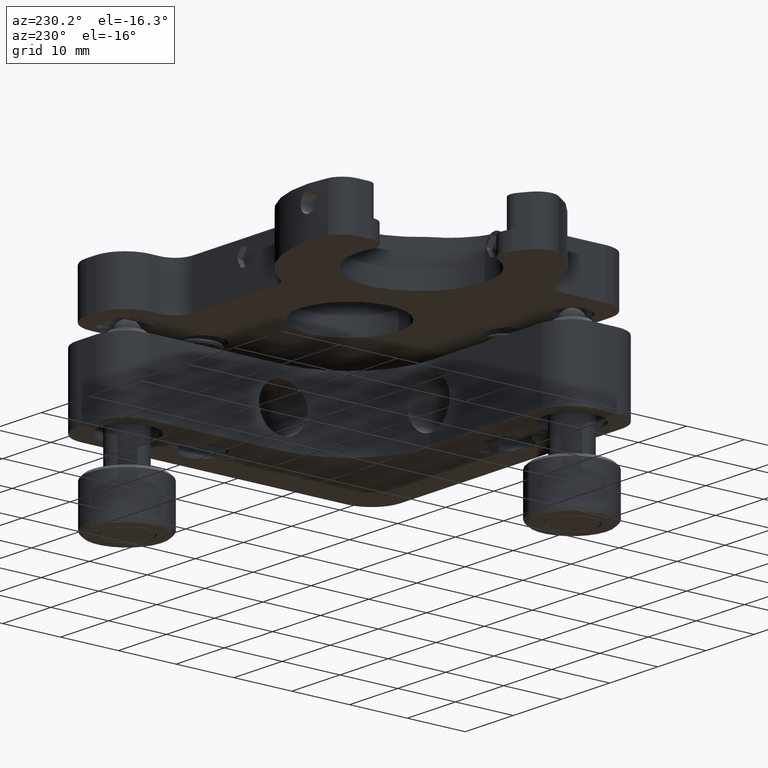
[diagram: clean part render]
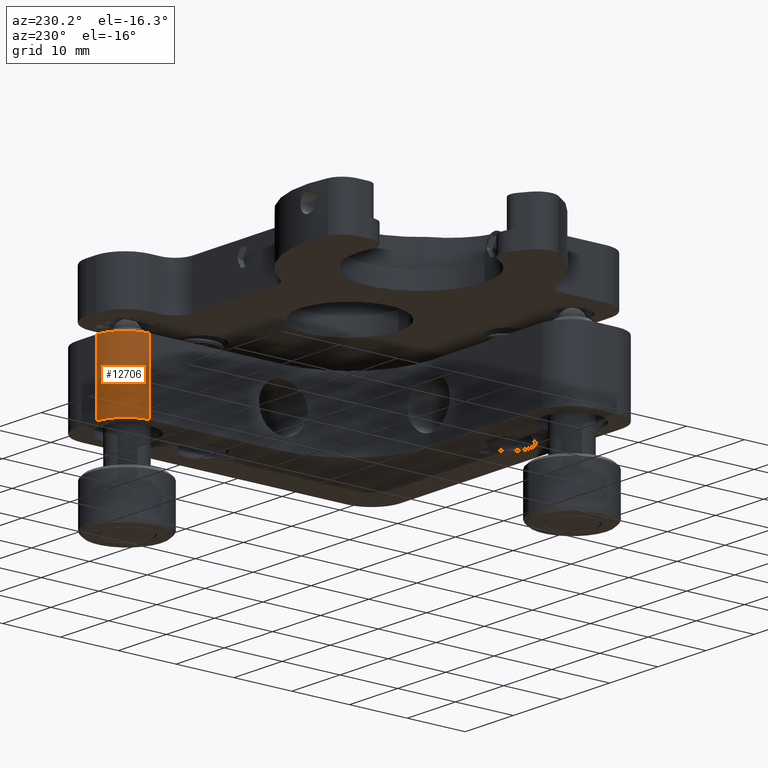
[diagram: same view with one face highlighted and labeled with its STEP entity id]
A machine part, auxiliary view. The second image highlights one B-rep face of the part: STEP entity #12706.
In plain terms, the highlighted cylindrical surface (partial cylindrical patch) has radius 5 mm, axis along (0, 0, 1).
Its self-contained STEP definition (entity closure, byte-faithful):
#200 = EDGE_CURVE ( 'NONE', #717, #569, #15520, .T. ) ;
#268 = CYLINDRICAL_SURFACE ( 'NONE', #18048, 5.000000000000000900 ) ;
#546 = CARTESIAN_POINT ( 'NONE',  ( 13.99999999999967000, 23.00000000000000700, -15.00000000000007100 ) ) ;
#569 = VERTEX_POINT ( 'NONE', #1894 ) ;
#717 = VERTEX_POINT ( 'NONE', #19264 ) ;
#1894 = CARTESIAN_POINT ( 'NONE',  ( 13.99999999999967000, 23.00000000000000700, -3.000000000000070200 ) ) ;
#3071 = ORIENTED_EDGE ( 'NONE', *, *, #12052, .F. ) ;
#3786 = ORIENTED_EDGE ( 'NONE', *, *, #17753, .F. ) ;
#3797 = VECTOR ( 'NONE', #11481, 1000.000000000000000 ) ;
#4453 = CARTESIAN_POINT ( 'NONE',  ( 18.99999999999967000, 23.00000000000004300, -3.000000000000070200 ) ) ;
#5275 = EDGE_CURVE ( 'NONE', #14592, #717, #16650, .T. ) ;
#5601 = DIRECTION ( 'NONE',  ( 0.0000000000000000000, 0.0000000000000000000, 1.000000000000000000 ) ) ;
#6269 = VECTOR ( 'NONE', #7467, 1000.000000000000000 ) ;
#6568 = FACE_OUTER_BOUND ( 'NONE', #8371, .T. ) ;
#6988 = CARTESIAN_POINT ( 'NONE',  ( 18.99999999999970500, 28.00000000000004300, -3.000000000000070200 ) ) ;
#7467 = DIRECTION ( 'NONE',  ( 0.0000000000000000000, 0.0000000000000000000, 1.000000000000000000 ) ) ;
#8190 = VERTEX_POINT ( 'NONE', #6988 ) ;
#8371 = EDGE_LOOP ( 'NONE', ( #3071, #3786, #13832, #9405 ) ) ;
#8562 = CIRCLE ( 'NONE', #10567, 5.000000000000000900 ) ;
#9143 = DIRECTION ( 'NONE',  ( -1.000000000000000000, 0.0000000000000000000, 0.0000000000000000000 ) ) ;
#9405 = ORIENTED_EDGE ( 'NONE', *, *, #200, .T. ) ;
#10567 = AXIS2_PLACEMENT_3D ( 'NONE', #4453, #20190, #9143 ) ;
#11481 = DIRECTION ( 'NONE',  ( 0.0000000000000000000, 0.0000000000000000000, 1.000000000000000000 ) ) ;
#11902 = AXIS2_PLACEMENT_3D ( 'NONE', #20123, #18840, #12415 ) ;
#12052 = EDGE_CURVE ( 'NONE', #8190, #569, #8562, .T. ) ;
#12087 = LINE ( 'NONE', #15230, #6269 ) ;
#12415 = DIRECTION ( 'NONE',  ( -1.000000000000000000, 0.0000000000000000000, 0.0000000000000000000 ) ) ;
#12706 = ADVANCED_FACE ( 'NONE', ( #6568 ), #268, .T. ) ;
#13137 = CARTESIAN_POINT ( 'NONE',  ( 18.99999999999967000, 23.00000000000004300, -15.00000000000007100 ) ) ;
#13832 = ORIENTED_EDGE ( 'NONE', *, *, #5275, .T. ) ;
#14592 = VERTEX_POINT ( 'NONE', #17097 ) ;
#14768 = DIRECTION ( 'NONE',  ( 1.000000000000000000, 0.0000000000000000000, 0.0000000000000000000 ) ) ;
#15230 = CARTESIAN_POINT ( 'NONE',  ( 18.99999999999970500, 28.00000000000004300, -15.00000000000007100 ) ) ;
#15520 = LINE ( 'NONE', #546, #3797 ) ;
#16650 = CIRCLE ( 'NONE', #11902, 5.000000000000000900 ) ;
#17097 = CARTESIAN_POINT ( 'NONE',  ( 18.99999999999970500, 28.00000000000004300, -15.00000000000007100 ) ) ;
#17753 = EDGE_CURVE ( 'NONE', #14592, #8190, #12087, .T. ) ;
#18048 = AXIS2_PLACEMENT_3D ( 'NONE', #13137, #5601, #14768 ) ;
#18840 = DIRECTION ( 'NONE',  ( 0.0000000000000000000, 0.0000000000000000000, 1.000000000000000000 ) ) ;
#19264 = CARTESIAN_POINT ( 'NONE',  ( 13.99999999999967000, 23.00000000000000700, -15.00000000000007100 ) ) ;
#20123 = CARTESIAN_POINT ( 'NONE',  ( 18.99999999999967000, 23.00000000000004300, -15.00000000000007100 ) ) ;
#20190 = DIRECTION ( 'NONE',  ( 0.0000000000000000000, 0.0000000000000000000, 1.000000000000000000 ) ) ;